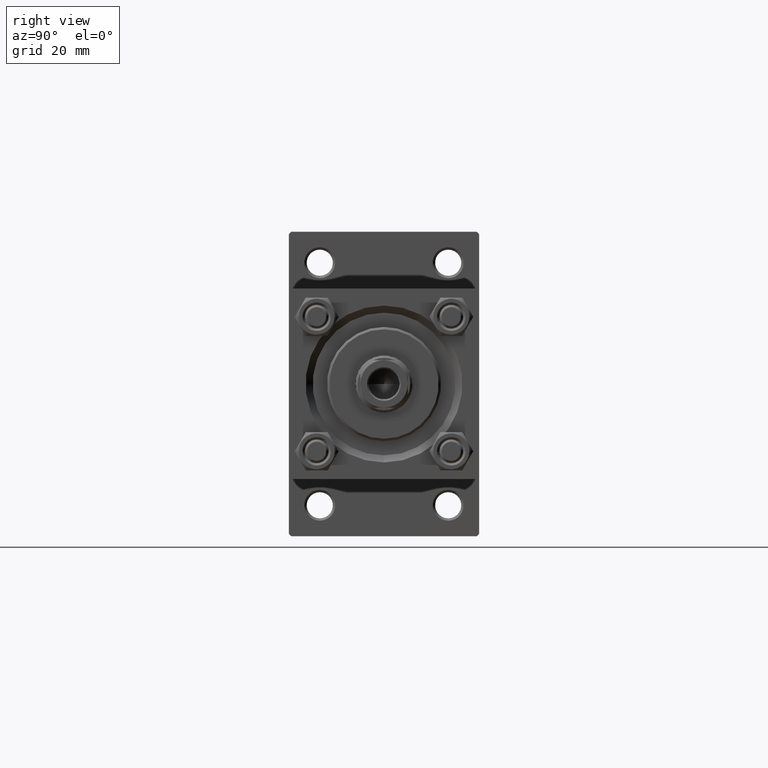
[diagram: clean part render]
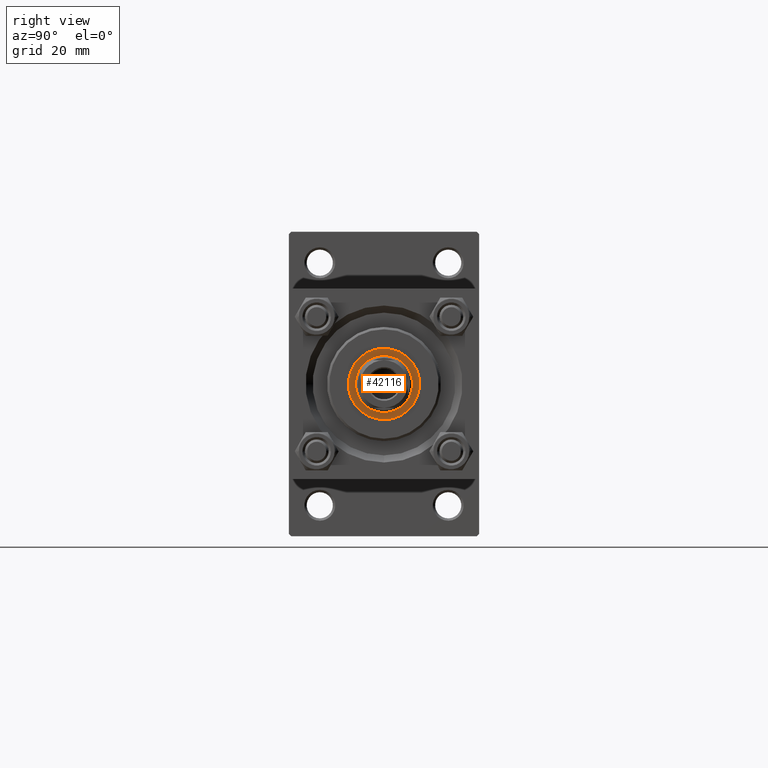
[diagram: same view with one face highlighted and labeled with its STEP entity id]
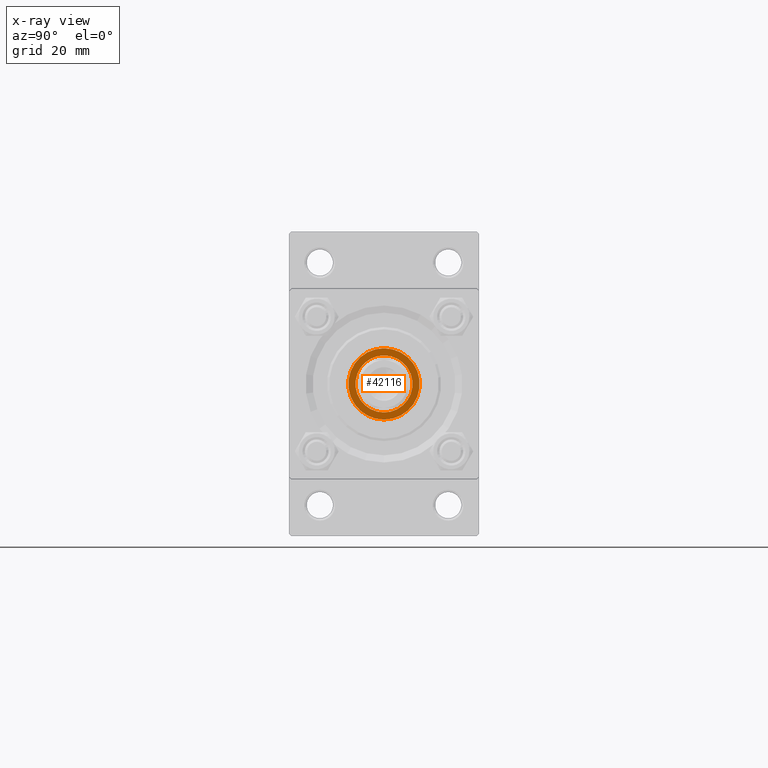
[diagram: x-ray of the same camera — body ghosted, the highlighted face saturated]
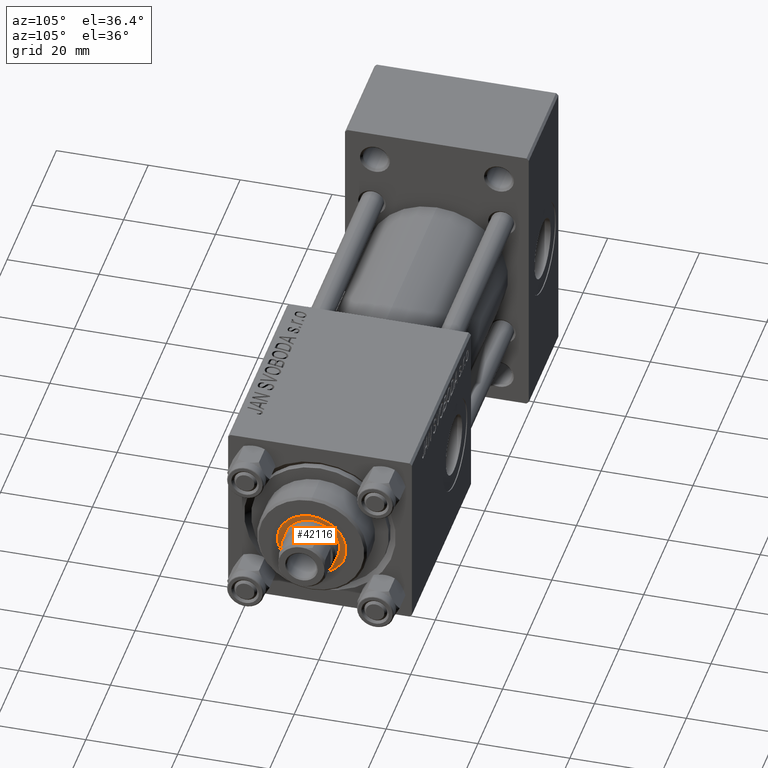
[diagram: same view with one face highlighted and labeled with its STEP entity id]
A machine part, right view. The second image highlights one B-rep face of the part: STEP entity #42116.
The next image is the same camera in x-ray: the body ghosted, the highlighted face saturated — about 0% of this face is hidden behind the body in this view.
A second angle (auxiliary view) of the same face is appended — the face is thin or edge-on in the first view.
In plain terms, the highlighted planar face has unit normal (1, 0, 0).
Its self-contained STEP definition (entity closure, byte-faithful):
#2686 = CIRCLE ( 'NONE', #20408, 7.500000000000000888 ) ;
#3541 = CARTESIAN_POINT ( 'NONE',  ( 0.000000000000000000, 0.000000000000000000, 35.20000000000000284 ) ) ;
#3889 = DIRECTION ( 'NONE',  ( -0.000000000000000000, -0.000000000000000000, -1.000000000000000000 ) ) ;
#4274 = DIRECTION ( 'NONE',  ( 0.000000000000000000, 0.000000000000000000, 1.000000000000000000 ) ) ;
#4642 = DIRECTION ( 'NONE',  ( 1.000000000000000000, 0.000000000000000000, 0.000000000000000000 ) ) ;
#5961 = CARTESIAN_POINT ( 'NONE',  ( 6.000000000000000888, 0.000000000000000000, 35.20000000000000284 ) ) ;
#6638 = VERTEX_POINT ( 'NONE', #17083 ) ;
#6795 = AXIS2_PLACEMENT_3D ( 'NONE', #47701, #32797, #47207 ) ;
#8921 = AXIS2_PLACEMENT_3D ( 'NONE', #16502, #31881, #34667 ) ;
#9525 = VERTEX_POINT ( 'NONE', #5961 ) ;
#10560 = CIRCLE ( 'NONE', #35544, 6.000000000000000888 ) ;
#10878 = DIRECTION ( 'NONE',  ( 1.000000000000000000, 0.000000000000000000, 0.000000000000000000 ) ) ;
#12735 = VERTEX_POINT ( 'NONE', #40710 ) ;
#16502 = CARTESIAN_POINT ( 'NONE',  ( 0.000000000000000000, 0.000000000000000000, 35.20000000000000284 ) ) ;
#17083 = CARTESIAN_POINT ( 'NONE',  ( -6.000000000000000888, 7.347880794884119736E-16, 35.20000000000000284 ) ) ;
#18774 = ORIENTED_EDGE ( 'NONE', *, *, #29501, .T. ) ;
#18943 = DIRECTION ( 'NONE',  ( 0.000000000000000000, 0.000000000000000000, 1.000000000000000000 ) ) ;
#19197 = EDGE_CURVE ( 'NONE', #12735, #20462, #33704, .T. ) ;
#20036 = CARTESIAN_POINT ( 'NONE',  ( 0.000000000000000000, 0.000000000000000000, 35.20000000000000284 ) ) ;
#20408 = AXIS2_PLACEMENT_3D ( 'NONE', #3541, #18943, #10878 ) ;
#20462 = VERTEX_POINT ( 'NONE', #42575 ) ;
#20938 = FACE_BOUND ( 'NONE', #21683, .T. ) ;
#21683 = EDGE_LOOP ( 'NONE', ( #18774, #25449 ) ) ;
#25161 = ORIENTED_EDGE ( 'NONE', *, *, #19197, .T. ) ;
#25449 = ORIENTED_EDGE ( 'NONE', *, *, #32564, .T. ) ;
#25668 = AXIS2_PLACEMENT_3D ( 'NONE', #42667, #4274, #27498 ) ;
#27498 = DIRECTION ( 'NONE',  ( 1.000000000000000000, 0.000000000000000000, 0.000000000000000000 ) ) ;
#29501 = EDGE_CURVE ( 'NONE', #9525, #6638, #10560, .T. ) ;
#30673 = CIRCLE ( 'NONE', #8921, 6.000000000000000888 ) ;
#31881 = DIRECTION ( 'NONE',  ( -0.000000000000000000, -0.000000000000000000, -1.000000000000000000 ) ) ;
#32539 = PLANE ( 'NONE',  #6795 ) ;
#32564 = EDGE_CURVE ( 'NONE', #6638, #9525, #30673, .T. ) ;
#32797 = DIRECTION ( 'NONE',  ( 0.000000000000000000, 0.000000000000000000, 1.000000000000000000 ) ) ;
#33704 = CIRCLE ( 'NONE', #25668, 7.500000000000000888 ) ;
#34667 = DIRECTION ( 'NONE',  ( 1.000000000000000000, 0.000000000000000000, 0.000000000000000000 ) ) ;
#35544 = AXIS2_PLACEMENT_3D ( 'NONE', #20036, #3889, #4642 ) ;
#39181 = EDGE_CURVE ( 'NONE', #20462, #12735, #2686, .T. ) ;
#39648 = FACE_OUTER_BOUND ( 'NONE', #47299, .T. ) ;
#40710 = CARTESIAN_POINT ( 'NONE',  ( 7.500000000000000888, 0.000000000000000000, 35.20000000000000284 ) ) ;
#42116 = ADVANCED_FACE ( 'NONE', ( #39648, #20938 ), #32539, .T. ) ;
#42575 = CARTESIAN_POINT ( 'NONE',  ( -7.500000000000000888, 9.184850993605149917E-16, 35.20000000000000284 ) ) ;
#42667 = CARTESIAN_POINT ( 'NONE',  ( 0.000000000000000000, 0.000000000000000000, 35.20000000000000284 ) ) ;
#47207 = DIRECTION ( 'NONE',  ( 1.000000000000000000, 0.000000000000000000, -0.000000000000000000 ) ) ;
#47299 = EDGE_LOOP ( 'NONE', ( #25161, #49207 ) ) ;
#47701 = CARTESIAN_POINT ( 'NONE',  ( 0.000000000000000000, 0.000000000000000000, 35.20000000000000284 ) ) ;
#49207 = ORIENTED_EDGE ( 'NONE', *, *, #39181, .T. ) ;